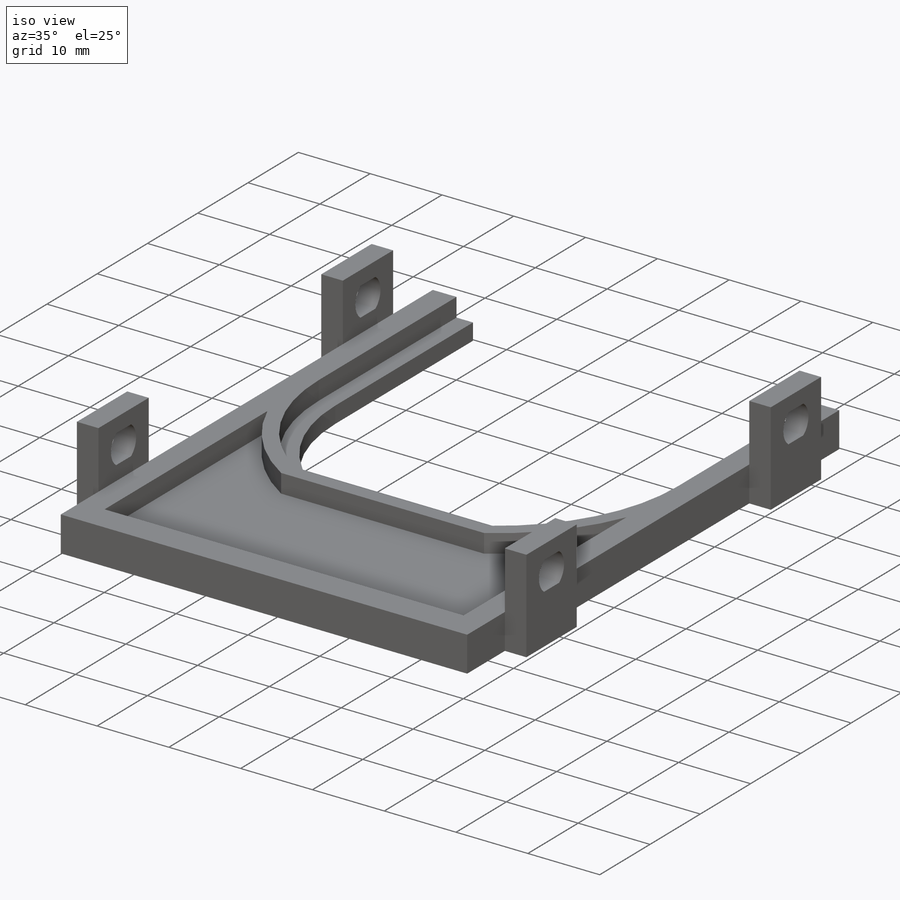
[diagram: iso view]
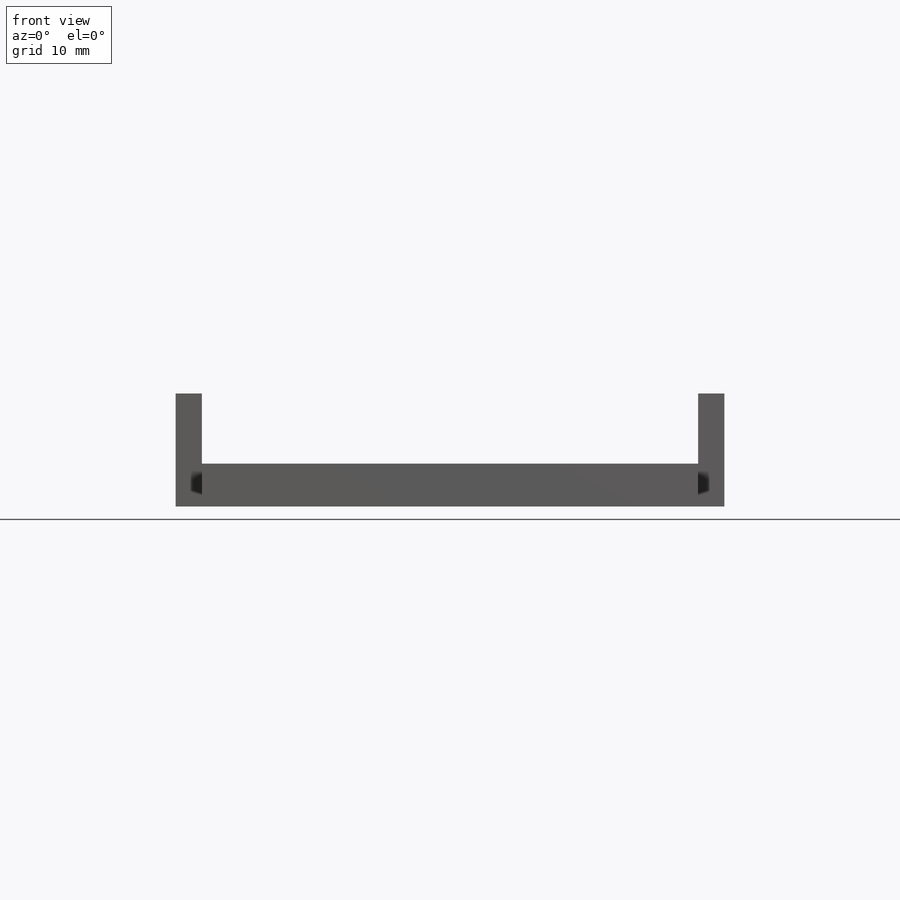
[diagram: front view]
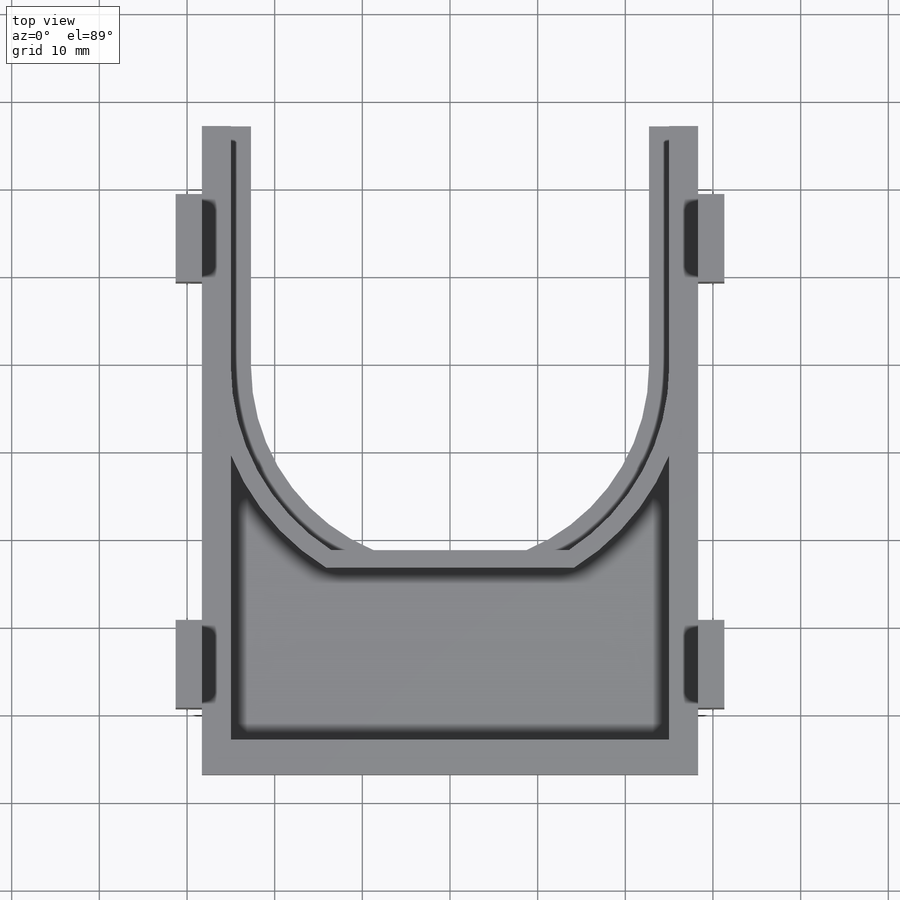
[diagram: top view]
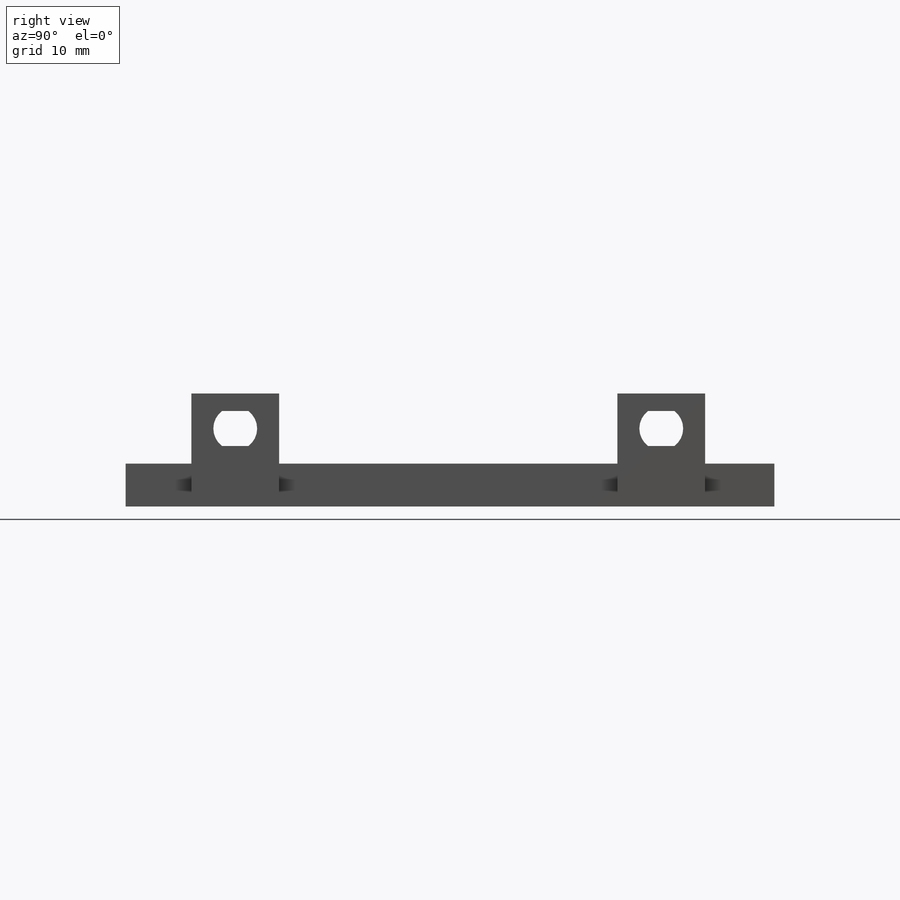
[diagram: right view]
SOLIDWORKS PART (.sldprt)
format: sldprt  version: not decoded by parser v0  size: 415,232 bytes
history: native  units: mm
features: sketch x12, extrude x8, cut_extrude x3, material x1 (+11 scaffold rows collapsed)
feature tree (35):
  scaffold x11  (default folders/planes/origin — collapsed)
  material  "Material <not specified>"
  sketch  "Sketch2"  dims[D1=4.0mm]
  extrude  "Boss-Extrude1"  [1 undecoded]
  sketch  "Sketch1"  dims[D1=2.0mm]
  cut_extrude  "Cut-Extrude1"  Depth=2.3mm
  sketch  "Sketch3"  dims[D1=0.0mm]
  extrude  "Boss-Extrude2"  Depth=0.3mm
  sketch  "Sketch4"
  extrude  "Boss-Extrude3"  Depth=0.3mm
  extrude  "Boss-Extrude4"  [1 undecoded]
  sketch  "Sketch4<2>"  dims[D1=0.3mm]
  sketch  "Sketch5"  dims[D1=12.9mm]
  extrude  "Boss-Extrude5"  Depth=3mm
  extrude  "Boss-Extrude7"  [1 undecoded]
  sketch  "Sketch5<2>"  dims[D1=3.0mm D19=56.6mm]
  sketch  "Sketch7"  dims[D1=0.5mm]
  sketch  "Sketch8"  dims[D1=4.0mm]
  cut_extrude  "Cut-Extrude2"  Depth=10mm
  sketch  "Sketch9"  dims[D1=4.0mm]
  cut_extrude  "Cut-Extrude3"  Depth=10mm
  sketch  "Sketch10"  dims[D1=2.0mm D2=0.5mm]
  extrude  "Boss-Extrude8"  Depth=0.03mm
  sketch  "Sketch11"  dims[D1=10.0mm]
  extrude  "Boss-Extrude9"  Depth=2mm
decode coverage: 19 of 23 modeling features carry decoded parameters
note: 3 parameter values undecoded
summary: no parameter record found for 3 features
note: suppression state not decoded; provenance and decode notes live in map.json
